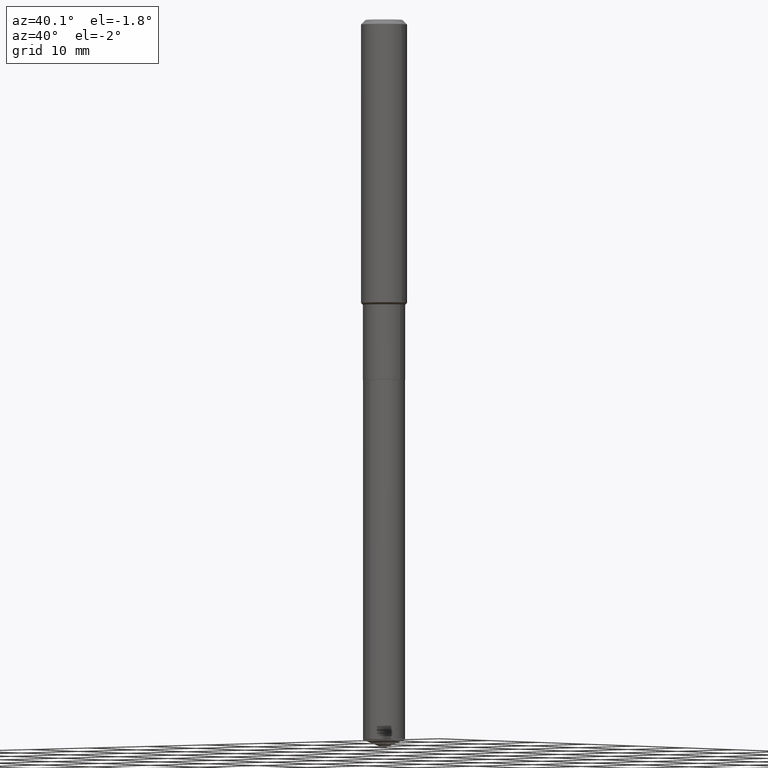
[diagram: clean part render]
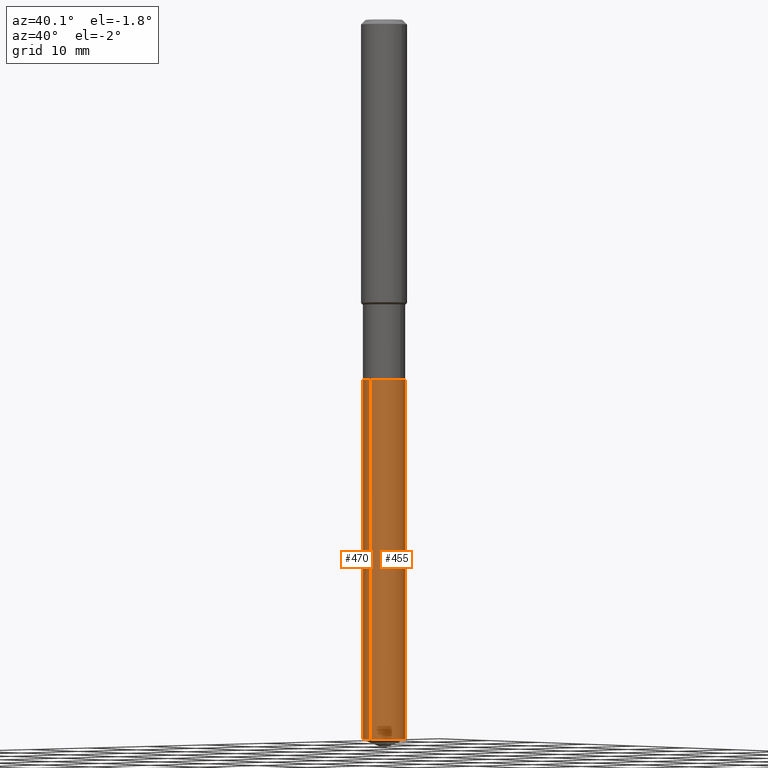
[diagram: same view with one multi-face feature highlighted, each face labeled with its STEP entity id]
A machine part, auxiliary view. The highlighted faces form ONE feature: a constant-radius fillet chain: 2 tangent blend faces with common blend radius 2.7495 mm. The faces share edges in the B-rep.
Their STEP definitions:
[1] entity #455 (Cylinder):
#31 = DIRECTION ( 'NONE',  ( -2.445480539169630025E-29, 3.491464536541551464E-15, 1.000000000000000000 ) ) ;
#36 = DIRECTION ( 'NONE',  ( -2.445480539169629745E-29, 3.491464536541551464E-15, 1.000000000000000000 ) ) ;
#78 = DIRECTION ( 'NONE',  ( -6.982962677686265922E-15, -1.000000000000000000, 5.047294214622195629E-15 ) ) ;
#85 = EDGE_CURVE ( 'NONE', #312, #254, #135, .T. ) ;
#87 = CARTESIAN_POINT ( 'NONE',  ( 7.691625114603990645E-16, 0.1082499999999935458, -1.850400000000000489 ) ) ;
#124 = CARTESIAN_POINT ( 'NONE',  ( 7.691625114603988673E-16, 0.1082499999999870927, -3.697559191014684554 ) ) ;
#126 = EDGE_LOOP ( 'NONE', ( #132, #291, #362, #209 ) ) ;
#127 = AXIS2_PLACEMENT_3D ( 'NONE', #234, #413, #78 ) ;
#128 = AXIS2_PLACEMENT_3D ( 'NONE', #476, #36, #286 ) ;
#132 = ORIENTED_EDGE ( 'NONE', *, *, #85, .T. ) ;
#135 = CIRCLE ( 'NONE', #127, 0.1082499999999999990 ) ;
#158 = VECTOR ( 'NONE', #31, 39.37007874015748143 ) ;
#159 = DIRECTION ( 'NONE',  ( -6.982962677686265922E-15, -1.000000000000000000, 2.523647107311097814E-15 ) ) ;
#171 = CYLINDRICAL_SURFACE ( 'NONE', #128, 0.1082499999999999990 ) ;
#207 = CIRCLE ( 'NONE', #335, 0.1082499999999999990 ) ;
#209 = ORIENTED_EDGE ( 'NONE', *, *, #481, .F. ) ;
#234 = CARTESIAN_POINT ( 'NONE',  ( 9.042287333339702825E-29, -1.290992787816990651E-14, -3.697559191014683666 ) ) ;
#240 = EDGE_CURVE ( 'NONE', #442, #427, #207, .T. ) ;
#246 = LINE ( 'NONE', #395, #343 ) ;
#254 = VERTEX_POINT ( 'NONE', #124 ) ;
#256 = FACE_OUTER_BOUND ( 'NONE', #126, .T. ) ;
#259 = EDGE_CURVE ( 'NONE', #254, #427, #246, .T. ) ;
#276 = DIRECTION ( 'NONE',  ( -2.445480539169629745E-29, 3.491464536541551464E-15, 1.000000000000000000 ) ) ;
#286 = DIRECTION ( 'NONE',  ( -6.982962677686265922E-15, -1.000000000000000000, 2.523647107311097814E-15 ) ) ;
#291 = ORIENTED_EDGE ( 'NONE', *, *, #259, .T. ) ;
#312 = VERTEX_POINT ( 'NONE', #464 ) ;
#335 = AXIS2_PLACEMENT_3D ( 'NONE', #388, #276, #159 ) ;
#343 = VECTOR ( 'NONE', #428, 39.37007874015748143 ) ;
#362 = ORIENTED_EDGE ( 'NONE', *, *, #240, .F. ) ;
#368 = LINE ( 'NONE', #482, #158 ) ;
#388 = CARTESIAN_POINT ( 'NONE',  ( 4.525095478964977394E-29, -6.460637069395357576E-15, -1.850400000000000267 ) ) ;
#395 = CARTESIAN_POINT ( 'NONE',  ( 7.691625114603536064E-16, 0.1082499999999935458, -1.850400000000000489 ) ) ;
#413 = DIRECTION ( 'NONE',  ( -2.445480539169629745E-29, 3.491464536541551464E-15, 1.000000000000000000 ) ) ;
#427 = VERTEX_POINT ( 'NONE', #87 ) ;
#428 = DIRECTION ( 'NONE',  ( -2.445480539169630025E-29, 3.491464536541551464E-15, 1.000000000000000000 ) ) ;
#442 = VERTEX_POINT ( 'NONE', #472 ) ;
#455 = ADVANCED_FACE ( 'NONE', ( #256 ), #171, .T. ) ;
#464 = CARTESIAN_POINT ( 'NONE',  ( -7.559057098594478378E-16, -0.1082500000000129053, -3.697559191014683222 ) ) ;
#472 = CARTESIAN_POINT ( 'NONE',  ( -7.559057098594930001E-16, -0.1082500000000064522, -1.850400000000000045 ) ) ;
#476 = CARTESIAN_POINT ( 'NONE',  ( 4.525095478964977394E-29, -6.460637069395357576E-15, -1.850400000000000267 ) ) ;
#481 = EDGE_CURVE ( 'NONE', #312, #442, #368, .T. ) ;
#482 = CARTESIAN_POINT ( 'NONE',  ( -7.559057098594930001E-16, -0.1082500000000064522, -1.850400000000000045 ) ) ;
[2] entity #470 (Cylinder):
#19 = CARTESIAN_POINT ( 'NONE',  ( 9.042287333339702825E-29, -1.290992787816990651E-14, -3.697559191014683666 ) ) ;
#31 = DIRECTION ( 'NONE',  ( -2.445480539169630025E-29, 3.491464536541551464E-15, 1.000000000000000000 ) ) ;
#65 = EDGE_CURVE ( 'NONE', #427, #442, #144, .T. ) ;
#86 = DIRECTION ( 'NONE',  ( -2.445480539169629745E-29, 3.491464536541551464E-15, 1.000000000000000000 ) ) ;
#87 = CARTESIAN_POINT ( 'NONE',  ( 7.691625114603990645E-16, 0.1082499999999935458, -1.850400000000000489 ) ) ;
#96 = DIRECTION ( 'NONE',  ( -6.982962677686265922E-15, -1.000000000000000000, 5.047294214622195629E-15 ) ) ;
#99 = DIRECTION ( 'NONE',  ( -6.982962677686265922E-15, -1.000000000000000000, 2.523647107311097814E-15 ) ) ;
#115 = CARTESIAN_POINT ( 'NONE',  ( 4.525095478964977394E-29, -6.460637069395357576E-15, -1.850400000000000267 ) ) ;
#119 = AXIS2_PLACEMENT_3D ( 'NONE', #115, #86, #383 ) ;
#124 = CARTESIAN_POINT ( 'NONE',  ( 7.691625114603988673E-16, 0.1082499999999870927, -3.697559191014684554 ) ) ;
#139 = EDGE_LOOP ( 'NONE', ( #465, #172, #357, #160 ) ) ;
#142 = DIRECTION ( 'NONE',  ( -2.445480539169629745E-29, 3.491464536541551464E-15, 1.000000000000000000 ) ) ;
#144 = CIRCLE ( 'NONE', #119, 0.1082499999999999990 ) ;
#158 = VECTOR ( 'NONE', #31, 39.37007874015748143 ) ;
#160 = ORIENTED_EDGE ( 'NONE', *, *, #65, .F. ) ;
#167 = DIRECTION ( 'NONE',  ( -2.445480539169629745E-29, 3.491464536541551464E-15, 1.000000000000000000 ) ) ;
#172 = ORIENTED_EDGE ( 'NONE', *, *, #218, .T. ) ;
#177 = FACE_OUTER_BOUND ( 'NONE', #139, .T. ) ;
#214 = CIRCLE ( 'NONE', #308, 0.1082499999999999990 ) ;
#218 = EDGE_CURVE ( 'NONE', #254, #312, #214, .T. ) ;
#246 = LINE ( 'NONE', #395, #343 ) ;
#254 = VERTEX_POINT ( 'NONE', #124 ) ;
#259 = EDGE_CURVE ( 'NONE', #254, #427, #246, .T. ) ;
#308 = AXIS2_PLACEMENT_3D ( 'NONE', #19, #167, #96 ) ;
#312 = VERTEX_POINT ( 'NONE', #464 ) ;
#343 = VECTOR ( 'NONE', #428, 39.37007874015748143 ) ;
#357 = ORIENTED_EDGE ( 'NONE', *, *, #481, .T. ) ;
#368 = LINE ( 'NONE', #482, #158 ) ;
#383 = DIRECTION ( 'NONE',  ( -6.982962677686265922E-15, -1.000000000000000000, 2.523647107311097814E-15 ) ) ;
#395 = CARTESIAN_POINT ( 'NONE',  ( 7.691625114603536064E-16, 0.1082499999999935458, -1.850400000000000489 ) ) ;
#407 = AXIS2_PLACEMENT_3D ( 'NONE', #438, #142, #99 ) ;
#427 = VERTEX_POINT ( 'NONE', #87 ) ;
#428 = DIRECTION ( 'NONE',  ( -2.445480539169630025E-29, 3.491464536541551464E-15, 1.000000000000000000 ) ) ;
#436 = CYLINDRICAL_SURFACE ( 'NONE', #407, 0.1082499999999999990 ) ;
#438 = CARTESIAN_POINT ( 'NONE',  ( 4.525095478964977394E-29, -6.460637069395357576E-15, -1.850400000000000267 ) ) ;
#442 = VERTEX_POINT ( 'NONE', #472 ) ;
#464 = CARTESIAN_POINT ( 'NONE',  ( -7.559057098594478378E-16, -0.1082500000000129053, -3.697559191014683222 ) ) ;
#465 = ORIENTED_EDGE ( 'NONE', *, *, #259, .F. ) ;
#470 = ADVANCED_FACE ( 'NONE', ( #177 ), #436, .T. ) ;
#472 = CARTESIAN_POINT ( 'NONE',  ( -7.559057098594930001E-16, -0.1082500000000064522, -1.850400000000000045 ) ) ;
#481 = EDGE_CURVE ( 'NONE', #312, #442, #368, .T. ) ;
#482 = CARTESIAN_POINT ( 'NONE',  ( -7.559057098594930001E-16, -0.1082500000000064522, -1.850400000000000045 ) ) ;